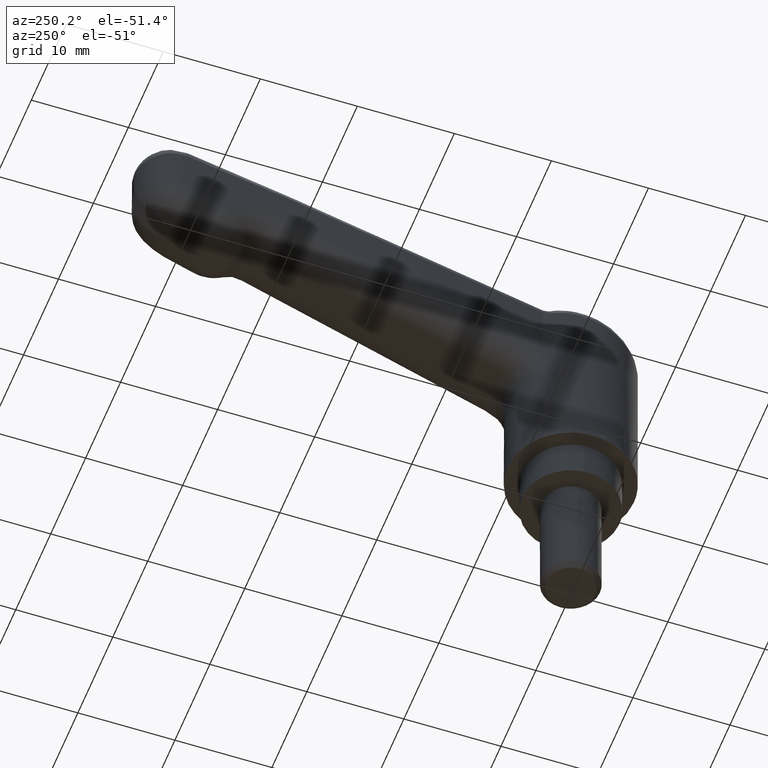
[diagram: clean part render]
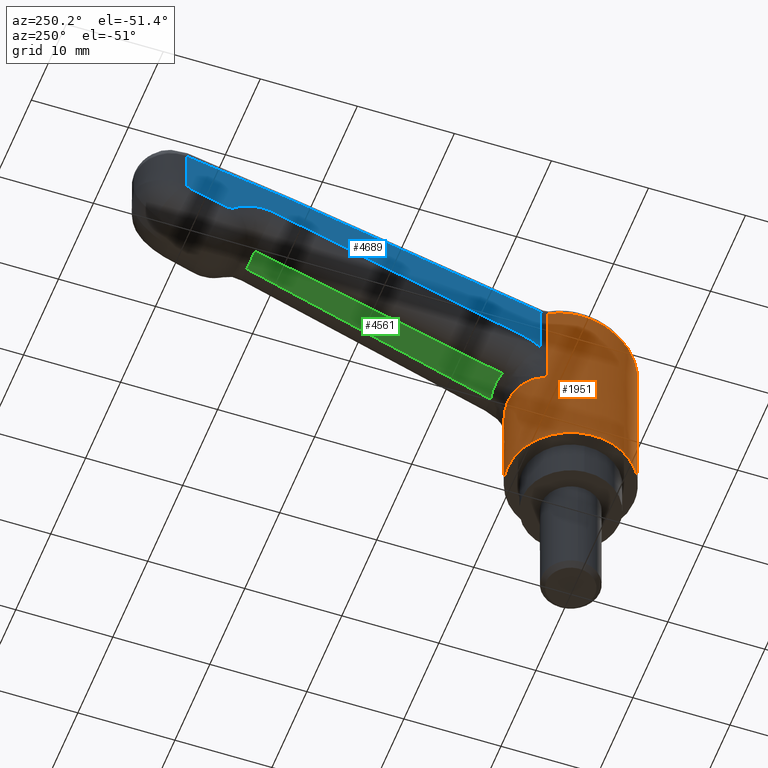
[diagram: same view with three faces highlighted in distinct colors, each labeled with its STEP entity id]
A machine part, auxiliary view with three faces highlighted in distinct colors.
Their STEP definitions:

[orange] entity #1951 — the highlighted face is a freeform B-spline surface patch.
#1808=CARTESIAN_POINT('',(-5.914748260697529,2.695506077265552,23.400783769491071));
#1809=CARTESIAN_POINT('',(-3.219242183431977,8.610254337963081,23.400783769491078));
#1810=CARTESIAN_POINT('',(2.695506077265552,5.914748260697529,23.400783769491071));
#1811=CARTESIAN_POINT('',(8.610254337963081,3.219242183431977,23.400783769491078));
#1812=CARTESIAN_POINT('',(5.914748260697529,-2.695506077265552,23.400783769491071));
#1813=CARTESIAN_POINT('',(3.219242183431977,-8.610254337963081,23.400783769491078));
#1814=CARTESIAN_POINT('',(-2.695506077265552,-5.914748260697529,23.400783769491071));
#1815=CARTESIAN_POINT('',(-5.914748260697529,2.695506077265552,3.514980405762724));
#1816=CARTESIAN_POINT('',(-3.219242183431977,8.610254337963081,3.514980405762724));
#1817=CARTESIAN_POINT('',(2.695506077265552,5.914748260697529,3.514980405762724));
#1818=CARTESIAN_POINT('',(8.610254337963081,3.219242183431977,3.514980405762724));
#1819=CARTESIAN_POINT('',(5.914748260697529,-2.695506077265552,3.514980405762724));
#1820=CARTESIAN_POINT('',(3.219242183431977,-8.610254337963081,3.514980405762724));
#1821=CARTESIAN_POINT('',(-2.695506077265552,-5.914748260697529,3.514980405762724));
#1829=(BOUNDED_SURFACE()B_SPLINE_SURFACE(2,1,((#1808,#1815),(#1809,#1816),(#1810,#1817),(#1811,#1818),(#1812,#1819),(#1813,#1820),(#1814,#1821)),.UNSPECIFIED.,.F.,.F.,.U.)B_SPLINE_SURFACE_WITH_KNOTS((3,2,2,3),(2,2),(0.0,10.769552621700470,21.539105243400940,32.308657865101402),(0.0,19.885803363728350),.UNSPECIFIED.)GEOMETRIC_REPRESENTATION_ITEM()RATIONAL_B_SPLINE_SURFACE(((1.0,1.0),(0.707106781186548,0.707106781186548),(1.0,1.0),(0.707106781186548,0.707106781186548),(1.0,1.0),(0.707106781186548,0.707106781186548),(1.0,1.0)))REPRESENTATION_ITEM('')SURFACE());
#1830=CARTESIAN_POINT('',(-5.914549030557717,2.695416163266641,20.523468583341909));
#1831=VERTEX_POINT('',#1830);
#1832=CARTESIAN_POINT('',(4.181284398144875,4.976631469360600,22.927593921454701));
#1833=VERTEX_POINT('',#1832);
#1834=CARTESIAN_POINT('',(-5.914549030557717,2.695416163266641,20.523468583341909));
#1835=CARTESIAN_POINT('',(-5.767468486490730,3.018050335340338,20.558268911247591));
#1836=CARTESIAN_POINT('',(-5.301181929138932,3.853651651242505,20.668784921353812));
#1837=CARTESIAN_POINT('',(-4.206732386147262,5.079375176715190,20.933537797244501));
#1838=CARTESIAN_POINT('',(-2.814015540329505,5.926542396084056,21.256796038891238));
#1839=CARTESIAN_POINT('',(-0.987577962027324,6.523199114144450,21.711269493583309));
#1840=CARTESIAN_POINT('',(0.518911407645906,6.562514857674298,22.054977967186652));
#1841=CARTESIAN_POINT('',(1.794250797316670,6.257449094870831,22.359250246099631));
#1842=CARTESIAN_POINT('',(2.343493194587236,6.072421571057179,22.489193506959111));
#1843=CARTESIAN_POINT('',(2.848927967781958,5.851381454310244,22.609174595253432));
#1844=CARTESIAN_POINT('',(3.310269165482875,5.602640639259406,22.719055273889769));
#1845=CARTESIAN_POINT('',(3.726997575588893,5.332975145164523,22.818719138621461));
#1846=CARTESIAN_POINT('',(4.011130282295424,5.119872779522569,22.886882516996131));
#1847=CARTESIAN_POINT('',(4.156138780718139,4.998073742364699,22.921579434600311));
#1848=CARTESIAN_POINT('',(4.181284398144875,4.976631469360600,22.927593921454701));
#1849=B_SPLINE_CURVE_WITH_KNOTS('',3,(#1834,#1835,#1836,#1837,#1838,#1839,#1840,#1841,#1842,#1843,#1844,#1845,#1846,#1847,#1848),.UNSPECIFIED.,.F.,.U.,(4,1,1,1,1,1,1,1,1,1,1,1,4),(0.590929793913175,0.625689573868113,0.684593177289269,0.752063985464612,0.785550837866162,0.877717810244562,0.898032705466529,0.917397459694434,0.935812799731019,0.953279587977761,0.969798852578575,0.985371826641243,0.988662854138937),.UNSPECIFIED.);
#1850=EDGE_CURVE('',#1831,#1833,#1849,.T.);
#1851=ORIENTED_EDGE('',*,*,#1850,.T.);
#1852=CARTESIAN_POINT('',(4.181284398144875,4.976631469360600,13.157700573101801));
#1853=VERTEX_POINT('',#1852);
#1854=CARTESIAN_POINT('',(4.181284398144875,4.976631469360600,22.927593921454701));
#1855=CARTESIAN_POINT('',(4.181284398144875,4.976631469360600,13.157700573101801));
#1856=QUASI_UNIFORM_CURVE('',1,(#1854,#1855),.UNSPECIFIED.,.F.,.U.);
#1857=EDGE_CURVE('',#1833,#1853,#1856,.T.);
#1858=ORIENTED_EDGE('',*,*,#1857,.T.);
#1859=CARTESIAN_POINT('',(4.181284398144875,-4.976631469360600,13.157700573101801));
#1860=VERTEX_POINT('',#1859);
#1861=CARTESIAN_POINT('',(4.181284398144868,4.976631469360603,13.157700573101810));
#1862=CARTESIAN_POINT('',(6.499999999999996,3.028484529113573,14.224243801016479));
#1863=CARTESIAN_POINT('',(6.499999999999996,7.959941E-016,14.224243801016479));
#1864=CARTESIAN_POINT('',(6.499999999999996,-3.028484529113571,14.224243801016479));
#1865=CARTESIAN_POINT('',(4.181284398144872,-4.976631469360600,13.157700573101820));
#1873=(BOUNDED_CURVE()B_SPLINE_CURVE(2,(#1861,#1862,#1863,#1864,#1865),.UNSPECIFIED.,.F.,.U.)B_SPLINE_CURVE_WITH_KNOTS((3,2,3),(0.0,0.500000000000000,1.0),.UNSPECIFIED.)CURVE()GEOMETRIC_REPRESENTATION_ITEM()RATIONAL_B_SPLINE_CURVE((1.0,0.906442089377892,1.0,0.906442089377892,1.0))REPRESENTATION_ITEM(''));
#1874=EDGE_CURVE('',#1853,#1860,#1873,.T.);
#1875=ORIENTED_EDGE('',*,*,#1874,.T.);
#1876=CARTESIAN_POINT('',(4.181284398144875,-4.976631469360600,22.927593525127300));
#1877=VERTEX_POINT('',#1876);
#1878=CARTESIAN_POINT('',(4.181284398144875,-4.976631469360600,13.157700573101801));
#1879=CARTESIAN_POINT('',(4.181284398144875,-4.976631469360600,22.927593525127300));
#1880=QUASI_UNIFORM_CURVE('',1,(#1878,#1879),.UNSPECIFIED.,.F.,.U.);
#1881=EDGE_CURVE('',#1860,#1877,#1880,.T.);
#1882=ORIENTED_EDGE('',*,*,#1881,.T.);
#1883=CARTESIAN_POINT('',(-2.695512989522391,-5.914765076864004,21.289376043468650));
#1884=VERTEX_POINT('',#1883);
#1885=CARTESIAN_POINT('',(4.181284398144875,-4.976631469360600,22.927593525127300));
#1886=CARTESIAN_POINT('',(4.090702165323511,-5.053378183210261,22.905918210867490));
#1887=CARTESIAN_POINT('',(3.899519879408040,-5.204324889178523,22.860066824728811));
#1888=CARTESIAN_POINT('',(3.594591241408540,-5.420201657547366,22.787020850012372));
#1889=CARTESIAN_POINT('',(3.262692340483001,-5.626525203530024,22.707703083930699));
#1890=CARTESIAN_POINT('',(2.904133538237865,-5.820130716685480,22.622291348183779));
#1891=CARTESIAN_POINT('',(2.518726233729398,-5.997385156107481,22.530764684001969));
#1892=CARTESIAN_POINT('',(2.106812028608926,-6.154602995259235,22.433104033876258));
#1893=CARTESIAN_POINT('',(1.668917019156096,-6.287865513283735,22.329410990867508));
#1894=CARTESIAN_POINT('',(0.704775852820398,-6.507636199962740,22.099638547656689));
#1895=CARTESIAN_POINT('',(-0.573018569196878,-6.546654560877359,21.802535929933271));
#1896=CARTESIAN_POINT('',(-1.801453945017824,-6.266555559959366,21.510996003727591));
#1897=CARTESIAN_POINT('',(-2.411559707857272,-6.039669515534760,21.357715511929360));
#1898=CARTESIAN_POINT('',(-2.625726142337787,-5.946577672371205,21.306056217161061));
#1899=CARTESIAN_POINT('',(-2.695512989522391,-5.914765076864004,21.289376043468650));
#1900=B_SPLINE_CURVE_WITH_KNOTS('',3,(#1885,#1886,#1887,#1888,#1889,#1890,#1891,#1892,#1893,#1894,#1895,#1896,#1897,#1898,#1899),.UNSPECIFIED.,.F.,.U.,(4,1,1,1,1,1,1,1,1,1,1,1,4),(0.011339002814821,0.023162408093432,0.035602075254132,0.048614959416363,0.062201629669727,0.076362582625634,0.091098253527881,0.106409025298450,0.122295235960681,0.190526883254455,0.232580987687207,0.248311673399157,0.255996156726028),.UNSPECIFIED.);
#1901=EDGE_CURVE('',#1877,#1884,#1900,.T.);
#1902=ORIENTED_EDGE('',*,*,#1901,.T.);
#1903=CARTESIAN_POINT('',(-2.695500760972466,-5.914750683466100,4.0));
#1904=VERTEX_POINT('',#1903);
#1905=CARTESIAN_POINT('',(-2.695512989522391,-5.914765076864004,21.289376043468650));
#1906=CARTESIAN_POINT('',(-2.695500760972466,-5.914750683466100,4.0));
#1907=QUASI_UNIFORM_CURVE('',1,(#1905,#1906),.UNSPECIFIED.,.F.,.U.);
#1908=EDGE_CURVE('',#1884,#1904,#1907,.T.);
#1909=ORIENTED_EDGE('',*,*,#1908,.T.);
#1910=CARTESIAN_POINT('',(6.500000000000000,0.0,4.0));
#1911=VERTEX_POINT('',#1910);
#1912=CARTESIAN_POINT('',(-2.695500760972466,-5.914750683466100,3.999999999999999));
#1913=CARTESIAN_POINT('',(-1.411285284178826,-6.500000000000000,4.0));
#1914=CARTESIAN_POINT('',(0.0,-6.500000000000000,4.0));
#1915=CARTESIAN_POINT('',(6.500000000000000,-6.500000000000000,4.0));
#1916=CARTESIAN_POINT('',(6.500000000000000,0.0,4.0));
#1924=(BOUNDED_CURVE()B_SPLINE_CURVE(2,(#1912,#1913,#1914,#1915,#1916),.UNSPECIFIED.,.F.,.U.)B_SPLINE_CURVE_WITH_KNOTS((3,2,3),(0.179570256140653,0.250000000000000,0.500000000000000),.UNSPECIFIED.)CURVE()GEOMETRIC_REPRESENTATION_ITEM()RATIONAL_B_SPLINE_CURVE((0.881464126001978,0.917486422483315,1.0,0.707106781186547,1.0))REPRESENTATION_ITEM(''));
#1925=EDGE_CURVE('',#1904,#1911,#1924,.T.);
#1926=ORIENTED_EDGE('',*,*,#1925,.T.);
#1927=CARTESIAN_POINT('',(-5.914752124722547,2.695497598404286,4.000000000000002));
#1928=VERTEX_POINT('',#1927);
#1929=CARTESIAN_POINT('',(6.500000000000000,0.0,4.0));
#1930=CARTESIAN_POINT('',(6.500000000000000,6.500000000000000,4.0));
#1931=CARTESIAN_POINT('',(0.0,6.500000000000000,4.0));
#1932=CARTESIAN_POINT('',(-4.180947077556312,6.500000000000000,4.0));
#1933=CARTESIAN_POINT('',(-5.914752124722547,2.695497598404285,4.000000000000002));
#1941=(BOUNDED_CURVE()B_SPLINE_CURVE(2,(#1929,#1930,#1931,#1932,#1933),.UNSPECIFIED.,.F.,.U.)B_SPLINE_CURVE_WITH_KNOTS((3,2,3),(0.500000000000000,0.750000000000000,0.929570339457503),.UNSPECIFIED.)CURVE()GEOMETRIC_REPRESENTATION_ITEM()RATIONAL_B_SPLINE_CURVE((1.0,0.707106781186547,1.0,0.789620261091471,0.881464211229225))REPRESENTATION_ITEM(''));
#1942=EDGE_CURVE('',#1911,#1928,#1941,.T.);
#1943=ORIENTED_EDGE('',*,*,#1942,.T.);
#1944=CARTESIAN_POINT('',(-5.914549030557717,2.695416163266641,20.523468583341909));
#1945=CARTESIAN_POINT('',(-5.914752124722547,2.695497598404286,4.000000000000002));
#1946=QUASI_UNIFORM_CURVE('',1,(#1944,#1945),.UNSPECIFIED.,.F.,.U.);
#1947=EDGE_CURVE('',#1831,#1928,#1946,.T.);
#1948=ORIENTED_EDGE('',*,*,#1947,.F.);
#1949=EDGE_LOOP('',(#1851,#1858,#1875,#1882,#1902,#1909,#1926,#1943,#1948));
#1950=FACE_OUTER_BOUND('',#1949,.T.);
#1951=ADVANCED_FACE('',(#1950),#1829,.T.);

[blue] entity #4689 — the highlighted face is a freeform B-spline surface patch.
#2085=CARTESIAN_POINT('',(4.804073263716750,4.742476933126480,17.698528247989699));
#2086=VERTEX_POINT('',#2085);
#2168=CARTESIAN_POINT('',(6.729902961068190,4.703016765244761,18.880297918210150));
#2169=VERTEX_POINT('',#2168);
#2197=CARTESIAN_POINT('',(6.729902961068190,4.703016765244761,18.880297918210150));
#2198=CARTESIAN_POINT('',(6.369126267411332,4.710409064220662,18.753397257488409));
#2199=CARTESIAN_POINT('',(6.028653220946148,4.717385342336639,18.590091423300262));
#2200=CARTESIAN_POINT('',(5.546472659345413,4.727265201358567,18.293979129071399));
#2201=CARTESIAN_POINT('',(5.390542730385567,4.730460198913646,18.186673971210201));
#2202=CARTESIAN_POINT('',(5.163962860078302,4.735102810736097,18.012600133476809));
#2203=CARTESIAN_POINT('',(5.089598469227130,4.736626533914445,17.952322520027121));
#2204=CARTESIAN_POINT('',(4.944392874896860,4.739601790313034,17.828221955772040));
#2205=CARTESIAN_POINT('',(4.873420914076465,4.741056002745587,17.764304802338270));
#2206=CARTESIAN_POINT('',(4.804073263716750,4.742476933126480,17.698528247989699));
#2207=B_SPLINE_CURVE_WITH_KNOTS('',3,(#2197,#2198,#2199,#2200,#2201,#2202,#2203,#2204,#2205,#2206),.UNSPECIFIED.,.F.,.U.,(4,2,2,2,4),(0.0,0.500000000000000,0.750000000000000,0.875000000000000,1.0),.UNSPECIFIED.);
#2208=EDGE_CURVE('',#2169,#2086,#2207,.T.);
#2227=CARTESIAN_POINT('',(32.033624131454147,4.184544603978870,27.780703603211851));
#2228=VERTEX_POINT('',#2227);
#2250=CARTESIAN_POINT('',(32.033624131454147,4.184544603978870,27.780703603211851));
#2251=CARTESIAN_POINT('',(6.729902961068190,4.703016765244761,18.880297918210150));
#2252=QUASI_UNIFORM_CURVE('',1,(#2250,#2251),.UNSPECIFIED.,.F.,.U.);
#2253=EDGE_CURVE('',#2228,#2169,#2252,.T.);
#2316=CARTESIAN_POINT('',(36.066367309400249,4.101913869265159,26.953569872643950));
#2317=VERTEX_POINT('',#2316);
#2349=CARTESIAN_POINT('',(36.066367309400249,4.101913869265159,26.953569872643950));
#2350=CARTESIAN_POINT('',(34.298195513550162,4.138143633508657,28.577250635467674));
#2351=CARTESIAN_POINT('',(32.033624131454147,4.184544603978870,27.780703603211851));
#2359=(BOUNDED_CURVE()B_SPLINE_CURVE(2,(#2349,#2350,#2351),.UNSPECIFIED.,.F.,.U.)CURVE()GEOMETRIC_REPRESENTATION_ITEM()QUASI_UNIFORM_CURVE()RATIONAL_B_SPLINE_CURVE((1.0,0.857438338275757,1.0))REPRESENTATION_ITEM(''));
#2360=EDGE_CURVE('',#2317,#2228,#2359,.T.);
#2391=CARTESIAN_POINT('',(37.084758577035153,4.081047075879730,26.750438415669301));
#2392=VERTEX_POINT('',#2391);
#2422=CARTESIAN_POINT('',(37.084758577035153,4.081047075879730,26.750438415669301));
#2423=CARTESIAN_POINT('',(36.513857694418938,4.092744810473302,26.542647398137458));
#2424=CARTESIAN_POINT('',(36.066367309400249,4.101913869265159,26.953569872643950));
#2432=(BOUNDED_CURVE()B_SPLINE_CURVE(2,(#2422,#2423,#2424),.UNSPECIFIED.,.F.,.U.)CURVE()GEOMETRIC_REPRESENTATION_ITEM()QUASI_UNIFORM_CURVE()RATIONAL_B_SPLINE_CURVE((1.0,0.854636887396126,1.0))REPRESENTATION_ITEM(''));
#2433=EDGE_CURVE('',#2392,#2317,#2432,.T.);
#2452=CARTESIAN_POINT('',(40.087518717605093,4.019520649416160,27.843354198447798));
#2453=VERTEX_POINT('',#2452);
#2475=CARTESIAN_POINT('',(40.087518717605093,4.019520649416160,27.843354198447798));
#2476=CARTESIAN_POINT('',(37.084758577035153,4.081047075879730,26.750438415669301));
#2477=QUASI_UNIFORM_CURVE('',1,(#2475,#2476),.UNSPECIFIED.,.F.,.U.);
#2478=EDGE_CURVE('',#2453,#2392,#2477,.T.);
#2531=CARTESIAN_POINT('',(41.081942628878487,3.999144946134395,28.444855264174748));
#2532=VERTEX_POINT('',#2531);
#2562=CARTESIAN_POINT('',(41.081942628878487,3.999144946134395,28.444855264174748));
#2563=CARTESIAN_POINT('',(40.644110257266000,4.008116112645973,28.045936454825277));
#2564=CARTESIAN_POINT('',(40.087518717605093,4.019520649416160,27.843354198447798));
#2572=(BOUNDED_CURVE()B_SPLINE_CURVE(2,(#2562,#2563,#2564),.UNSPECIFIED.,.F.,.U.)CURVE()GEOMETRIC_REPRESENTATION_ITEM()QUASI_UNIFORM_CURVE()RATIONAL_B_SPLINE_CURVE((1.0,0.981061155213343,1.0))REPRESENTATION_ITEM(''));
#2573=EDGE_CURVE('',#2532,#2453,#2572,.T.);
#3326=CARTESIAN_POINT('',(4.804073263716750,4.742476933126480,22.927593921454701));
#3327=VERTEX_POINT('',#3326);
#3328=CARTESIAN_POINT('',(4.804073263716750,4.742476933126480,17.698528247989699));
#3329=CARTESIAN_POINT('',(4.804073263716750,4.742476933126480,22.927593921454701));
#3330=QUASI_UNIFORM_CURVE('',1,(#3328,#3329),.UNSPECIFIED.,.F.,.U.);
#3331=EDGE_CURVE('',#2086,#3327,#3330,.T.);
#3425=CARTESIAN_POINT('',(4.752992631287901,4.743523573093530,23.264541861390398));
#3426=VERTEX_POINT('',#3425);
#3440=CARTESIAN_POINT('',(4.804073263716750,4.742476933126480,22.927593921454701));
#3441=CARTESIAN_POINT('',(4.803021806800629,4.742498477433571,22.984797280923530));
#3442=CARTESIAN_POINT('',(4.798487393341230,4.742591387370809,23.041512130019441));
#3443=CARTESIAN_POINT('',(4.781524174461214,4.742938962997918,23.153837021277759));
#3444=CARTESIAN_POINT('',(4.769238112481975,4.743190703880799,23.209466683805552));
#3445=CARTESIAN_POINT('',(4.752992631287901,4.743523573093530,23.264541861390398));
#3446=B_SPLINE_CURVE_WITH_KNOTS('',3,(#3440,#3441,#3442,#3443,#3444,#3445),.UNSPECIFIED.,.F.,.U.,(4,2,4),(0.0,0.500000000000000,1.0),.UNSPECIFIED.);
#3447=EDGE_CURVE('',#3327,#3426,#3446,.T.);
#4098=CARTESIAN_POINT('',(41.081942628878487,3.999144946134395,32.970756681665392));
#4099=VERTEX_POINT('',#4098);
#4188=CARTESIAN_POINT('',(4.752992631287919,4.743523573093528,23.264541861390398));
#4189=CARTESIAN_POINT('',(12.716156900139710,4.580358678839998,25.506597724399580));
#4190=CARTESIAN_POINT('',(20.679321168991510,4.417193784586469,27.748653587408761));
#4191=CARTESIAN_POINT('',(28.642485437843298,4.254028890332940,29.990709450417949));
#4192=CARTESIAN_POINT('',(30.693027062328451,4.212013380414315,30.568046387884401));
#4193=CARTESIAN_POINT('',(32.770810175638452,4.169439693558310,31.048588446640601));
#4194=CARTESIAN_POINT('',(34.848593288948500,4.126866006702310,31.529130505396800));
#4195=CARTESIAN_POINT('',(36.926376402258498,4.084292319846311,32.009672564153007));
#4196=CARTESIAN_POINT('',(39.031401004393402,4.041160456052930,32.393419744198951));
#4197=CARTESIAN_POINT('',(41.081942628878487,3.999144946134395,32.970756681665392));
#4198=B_SPLINE_CURVE_WITH_KNOTS('',3,(#4188,#4189,#4190,#4191,#4192,#4193,#4194,#4195,#4196,#4197),.UNSPECIFIED.,.F.,.U.,(4,3,3,4),(0.0,0.215746907867472,0.271302463423027,0.326858018978583),.UNSPECIFIED.);
#4199=EDGE_CURVE('',#3426,#4099,#4198,.T.);
#4645=CARTESIAN_POINT('',(41.081942628878487,3.999144946134395,32.970756681665392));
#4646=CARTESIAN_POINT('',(41.081942628878487,3.999144946134395,28.444855264174748));
#4647=QUASI_UNIFORM_CURVE('',1,(#4645,#4646),.UNSPECIFIED.,.F.,.U.);
#4648=EDGE_CURVE('',#4099,#2532,#4647,.T.);
#4672=CARTESIAN_POINT('',(2.938361649320806,4.780705284067486,16.935680467328140));
#4673=CARTESIAN_POINT('',(42.896574585263963,3.961963215194746,16.935680467328140));
#4674=CARTESIAN_POINT('',(2.938361649320806,4.780705284067486,33.733604871960040));
#4675=CARTESIAN_POINT('',(42.896574585263963,3.961963215194746,33.733604871960040));
#4676=B_SPLINE_SURFACE_WITH_KNOTS('',1,1,((#4672,#4674),(#4673,#4675)),.UNSPECIFIED.,.F.,.F.,.U.,(2,2),(2,2),(0.0,39.966600050661263),(0.0,16.797924404631900),.UNSPECIFIED.);
#4677=ORIENTED_EDGE('',*,*,#2253,.T.);
#4678=ORIENTED_EDGE('',*,*,#2208,.T.);
#4679=ORIENTED_EDGE('',*,*,#3331,.T.);
#4680=ORIENTED_EDGE('',*,*,#3447,.T.);
#4681=ORIENTED_EDGE('',*,*,#4199,.T.);
#4682=ORIENTED_EDGE('',*,*,#4648,.T.);
#4683=ORIENTED_EDGE('',*,*,#2573,.T.);
#4684=ORIENTED_EDGE('',*,*,#2478,.T.);
#4685=ORIENTED_EDGE('',*,*,#2433,.T.);
#4686=ORIENTED_EDGE('',*,*,#2360,.T.);
#4687=EDGE_LOOP('',(#4677,#4678,#4679,#4680,#4681,#4682,#4683,#4684,#4685,#4686));
#4688=FACE_OUTER_BOUND('',#4687,.T.);
#4689=ADVANCED_FACE('',(#4688),#4676,.F.);

[green] entity #4561 — the highlighted face is a freeform B-spline surface patch.
#2170=CARTESIAN_POINT('',(7.663890390378490,1.703646324529980,16.050264270958049));
#2171=VERTEX_POINT('',#2170);
#2229=CARTESIAN_POINT('',(32.967611560764503,1.185174163263914,24.950669955959750));
#2230=VERTEX_POINT('',#2229);
#2244=CARTESIAN_POINT('',(7.663890390378490,1.703646324529980,16.050264270958049));
#2245=CARTESIAN_POINT('',(32.967611560764503,1.185174163263914,24.950669955959750));
#2246=QUASI_UNIFORM_CURVE('',1,(#2244,#2245),.UNSPECIFIED.,.F.,.U.);
#2247=EDGE_CURVE('',#2171,#2230,#2246,.T.);
#3014=CARTESIAN_POINT('',(32.967611560764503,-1.185174163264024,24.950669955959750));
#3015=VERTEX_POINT('',#3014);
#3075=CARTESIAN_POINT('',(7.663890390378520,-1.703646324529835,16.050264270958049));
#3076=VERTEX_POINT('',#3075);
#3090=CARTESIAN_POINT('',(32.967611560764503,-1.185174163264024,24.950669955959750));
#3091=CARTESIAN_POINT('',(7.663890390378520,-1.703646324529835,16.050264270958049));
#3092=QUASI_UNIFORM_CURVE('',1,(#3090,#3091),.UNSPECIFIED.,.F.,.U.);
#3093=EDGE_CURVE('',#3015,#3076,#3092,.T.);
#3297=CARTESIAN_POINT('',(32.967611560764503,1.185174163263914,24.950669955959750));
#3298=CARTESIAN_POINT('',(32.967611560764503,-1.185174163264024,24.950669955959750));
#3299=QUASI_UNIFORM_CURVE('',1,(#3297,#3298),.UNSPECIFIED.,.F.,.U.);
#3300=EDGE_CURVE('',#2230,#3015,#3299,.T.);
#3903=CARTESIAN_POINT('',(7.663890390378509,-1.703646324529837,16.050264270958021));
#3904=CARTESIAN_POINT('',(8.012422822868885,1.951564E-014,16.172858099061667));
#3905=CARTESIAN_POINT('',(7.663890390378490,1.703646324529980,16.050264270958049));
#3913=(BOUNDED_CURVE()B_SPLINE_CURVE(2,(#3903,#3904,#3905),.UNSPECIFIED.,.F.,.U.)CURVE()GEOMETRIC_REPRESENTATION_ITEM()QUASI_UNIFORM_CURVE()RATIONAL_B_SPLINE_CURVE((1.0,0.979708234238197,1.0))REPRESENTATION_ITEM(''));
#3914=EDGE_CURVE('',#3076,#2171,#3913,.T.);
#4550=CARTESIAN_POINT('',(6.399969476558571,-1.873840585746379,15.605688992444410));
#4551=CARTESIAN_POINT('',(34.231534963146302,-1.873840585746379,25.395246109807459));
#4552=CARTESIAN_POINT('',(6.399969476558571,1.873840677137234,15.605688992444410));
#4553=CARTESIAN_POINT('',(34.231534963146302,1.873840677137234,25.395246109807459));
#4554=B_SPLINE_SURFACE_WITH_KNOTS('',1,1,((#4550,#4552),(#4551,#4553)),.UNSPECIFIED.,.F.,.F.,.U.,(2,2),(2,2),(0.0,29.503075534396999),(0.0,3.747681262883613),.UNSPECIFIED.);
#4555=ORIENTED_EDGE('',*,*,#3914,.T.);
#4556=ORIENTED_EDGE('',*,*,#2247,.T.);
#4557=ORIENTED_EDGE('',*,*,#3300,.T.);
#4558=ORIENTED_EDGE('',*,*,#3093,.T.);
#4559=EDGE_LOOP('',(#4555,#4556,#4557,#4558));
#4560=FACE_OUTER_BOUND('',#4559,.T.);
#4561=ADVANCED_FACE('',(#4560),#4554,.F.);